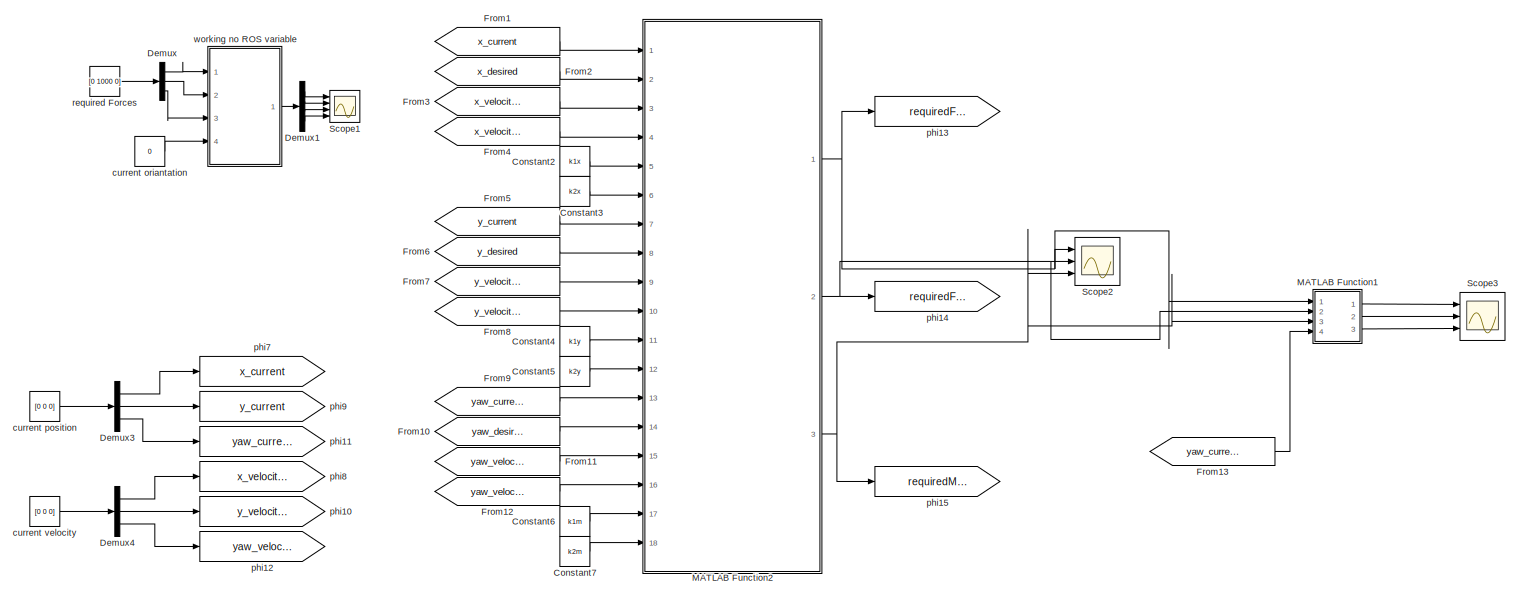
[diagram: root canvas - part 1/2, full width, middle band]
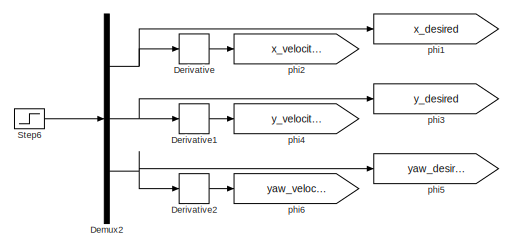
[diagram: root canvas - part 2/2, bottom left region]
MODEL slx_d18489592d00
KIND model
BLOCK [Constant] Constant2
  Value = k1x
BLOCK [Constant] Constant3
  Value = k2x
BLOCK [Constant] Constant4
  Value = k1y
BLOCK [Constant] Constant5
  Value = k2y
BLOCK [Constant] Constant6
  Value = k1m
BLOCK [Constant] Constant7
  Value = k2m
BLOCK [Demux] Demux
  DisplayOption = bar
  Outputs = 3
  Ports = [1, 3]
BLOCK [Demux] Demux1
  DisplayOption = bar
  Ports = [1, 4]
BLOCK [Demux] Demux2
  DisplayOption = bar
  Outputs = 3
  Ports = [1, 3]
BLOCK [Demux] Demux3
  DisplayOption = bar
  Outputs = 3
  Ports = [1, 3]
BLOCK [Demux] Demux4
  DisplayOption = bar
  Outputs = 3
  Ports = [1, 3]
BLOCK [Derivative] Derivative
BLOCK [Derivative] Derivative1
BLOCK [Derivative] Derivative2
BLOCK [From] From1
  GotoTag = x_current
BLOCK [From] From10
  GotoTag = yaw_desired
BLOCK [From] From11
  GotoTag = yaw_velocity_current
BLOCK [From] From12
  GotoTag = yaw_velocity_desired
BLOCK [From] From13
  GotoTag = yaw_current
BLOCK [From] From2
  GotoTag = x_desired
BLOCK [From] From3
  GotoTag = x_velocity_current
BLOCK [From] From4
  GotoTag = x_velocity_desired
BLOCK [From] From5
  GotoTag = y_current
BLOCK [From] From6
  GotoTag = y_desired
BLOCK [From] From7
  GotoTag = y_velocity_current
BLOCK [From] From8
  GotoTag = y_velocity_desired
BLOCK [From] From9
  GotoTag = yaw_current
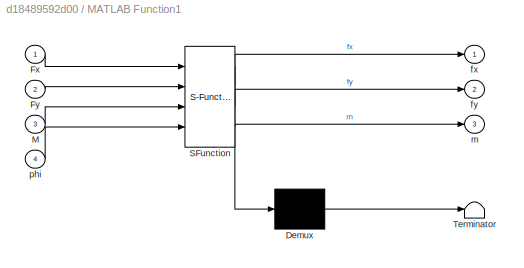
BLOCK [SubSystem] MATLAB Function1
  ErrorFcn = Stateflow.Translate.translate
  PermitHierarchicalResolution = ExplicitOnly
  Ports = [4, 3]
  RequestExecContextInheritance = off
  SFBlockType = MATLAB Function
  TreatAsAtomicUnit = on
BLOCK [Demux] MATLAB Function1/ Demux 
  Outputs = 1
  Ports = [1, 1]
BLOCK [S-Function] MATLAB Function1/ SFunction 
  EnableBusSupport = on
  FunctionName = sf_sfun
  PortCounts = [4 4]
  Ports = [4, 4]
  Tag = Stateflow S-Function OneToOne 2
BLOCK [Terminator] MATLAB Function1/ Terminator 
BLOCK [Inport] MATLAB Function1/Fx
  IconDisplay = Port number
BLOCK [Inport] MATLAB Function1/Fy
  IconDisplay = Port number
  Port = 2
BLOCK [Inport] MATLAB Function1/M
  IconDisplay = Port number
  Port = 3
BLOCK [Outport] MATLAB Function1/fx
  IconDisplay = Port number
BLOCK [Outport] MATLAB Function1/fy
  IconDisplay = Port number
  Port = 2
BLOCK [Outport] MATLAB Function1/m
  IconDisplay = Port number
  Port = 3
BLOCK [Inport] MATLAB Function1/phi
  IconDisplay = Port number
  Port = 4
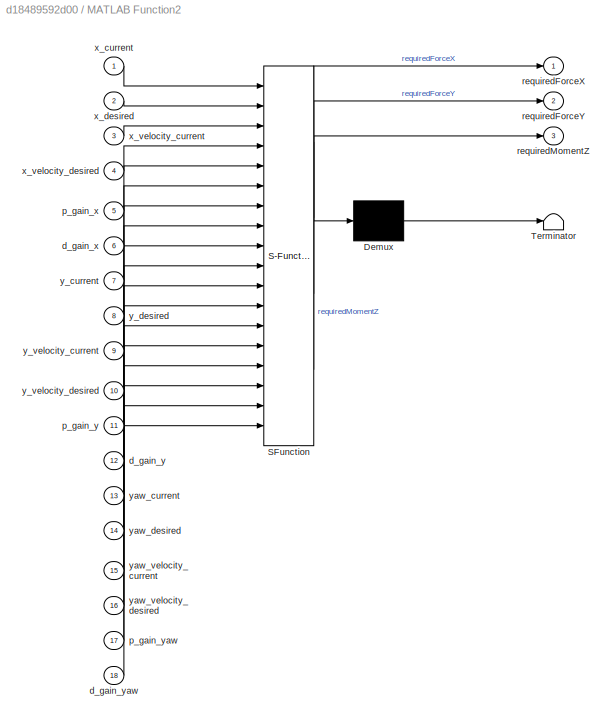
BLOCK [SubSystem] MATLAB Function2
  ErrorFcn = Stateflow.Translate.translate
  PermitHierarchicalResolution = ExplicitOnly
  Ports = [18, 3]
  RequestExecContextInheritance = off
  SFBlockType = MATLAB Function
  TreatAsAtomicUnit = on
BLOCK [Demux] MATLAB Function2/ Demux 
  Outputs = 1
  Ports = [1, 1]
BLOCK [S-Function] MATLAB Function2/ SFunction 
  EnableBusSupport = on
  FunctionName = sf_sfun
  PortCounts = [18 4]
  Ports = [18, 4]
  Tag = Stateflow S-Function OneToOne 1
BLOCK [Terminator] MATLAB Function2/ Terminator 
BLOCK [Inport] MATLAB Function2/d_gain_x
  IconDisplay = Port number
  Port = 6
BLOCK [Inport] MATLAB Function2/d_gain_y
  IconDisplay = Port number
  Port = 12
BLOCK [Inport] MATLAB Function2/d_gain_yaw
  IconDisplay = Port number
  Port = 18
BLOCK [Inport] MATLAB Function2/p_gain_x
  IconDisplay = Port number
  Port = 5
BLOCK [Inport] MATLAB Function2/p_gain_y
  IconDisplay = Port number
  Port = 11
BLOCK [Inport] MATLAB Function2/p_gain_yaw
  IconDisplay = Port number
  Port = 17
BLOCK [Outport] MATLAB Function2/requiredForceX
  IconDisplay = Port number
BLOCK [Outport] MATLAB Function2/requiredForceY
  IconDisplay = Port number
  Port = 2
BLOCK [Outport] MATLAB Function2/requiredMomentZ
  IconDisplay = Port number
  Port = 3
BLOCK [Inport] MATLAB Function2/x_current
  IconDisplay = Port number
BLOCK [Inport] MATLAB Function2/x_desired
  IconDisplay = Port number
  Port = 2
BLOCK [Inport] MATLAB Function2/x_velocity_current
  IconDisplay = Port number
  Port = 3
BLOCK [Inport] MATLAB Function2/x_velocity_desired
  IconDisplay = Port number
  Port = 4
BLOCK [Inport] MATLAB Function2/y_current
  IconDisplay = Port number
  Port = 7
BLOCK [Inport] MATLAB Function2/y_desired
  IconDisplay = Port number
  Port = 8
BLOCK [Inport] MATLAB Function2/y_velocity_current
  IconDisplay = Port number
  Port = 9
BLOCK [Inport] MATLAB Function2/y_velocity_desired
  IconDisplay = Port number
  Port = 10
BLOCK [Inport] MATLAB Function2/yaw_current
  IconDisplay = Port number
  Port = 13
BLOCK [Inport] MATLAB Function2/yaw_desired
  IconDisplay = Port number
  Port = 14
BLOCK [Inport] MATLAB Function2/yaw_velocity_current
  IconDisplay = Port number
  Port = 15
BLOCK [Inport] MATLAB Function2/yaw_velocity_desired
  IconDisplay = Port number
  Port = 16
BLOCK [Scope] Scope1
  DataFormat = StructureWithTime
  Floating = off
  NumInputPorts = 4
  Ports = [4]
  SampleTime = 0
  SaveName = ScopeData1
  ShowLegends = off
  YMax = -69.9983~-23.65~69.9983~39.25
  YMin = -69.9983~-23.65~69.9983~39.25
  ZoomMode = yonly
BLOCK [Scope] Scope2
  DataFormat = StructureWithTime
  Floating = off
  LimitDataPoints = off
  NumInputPorts = 3
  Ports = [3]
  SampleTime = 0
  ShowLegends = off
  YMax = 0~940~-155
  YMin = -3~905~-185
  ZoomMode = yonly
BLOCK [Scope] Scope3
  DataFormat = StructureWithTime
  Floating = off
  LimitDataPoints = off
  NumInputPorts = 3
  Ports = [3]
  SampleTime = 0
  SaveName = ScopeData2
  ShowLegends = off
  YMax = 0~940~-155
  YMin = -3~905~-185
  ZoomMode = yonly
BLOCK [Step] Step6
  After = [0;10;0]
  Before = [0;0;0]
  SampleTime = 0
BLOCK [Constant] current oriantation
  Value = 0
BLOCK [Constant] current position
  Value = [0 0 0]
BLOCK [Constant] current velocity
  Value = [0 0 0]
BLOCK [Goto] phi1
  GotoTag = x_desired
BLOCK [Goto] phi10
  GotoTag = y_velocity_current
BLOCK [Goto] phi11
  GotoTag = yaw_current
BLOCK [Goto] phi12
  GotoTag = yaw_velocity_current
BLOCK [Goto] phi13
  GotoTag = requiredForceX
BLOCK [Goto] phi14
  GotoTag = requiredForceY
BLOCK [Goto] phi15
  GotoTag = requiredMomentZ
BLOCK [Goto] phi2
  GotoTag = x_velocity_desired
BLOCK [Goto] phi3
  GotoTag = y_desired
BLOCK [Goto] phi4
  GotoTag = y_velocity_desired
BLOCK [Goto] phi5
  GotoTag = yaw_desired
BLOCK [Goto] phi6
  GotoTag = yaw_velocity_desired
BLOCK [Goto] phi7
  GotoTag = x_current
BLOCK [Goto] phi8
  GotoTag = x_velocity_current
BLOCK [Goto] phi9
  GotoTag = y_current
BLOCK [Constant] required Forces
  Value = [0 1000 0]
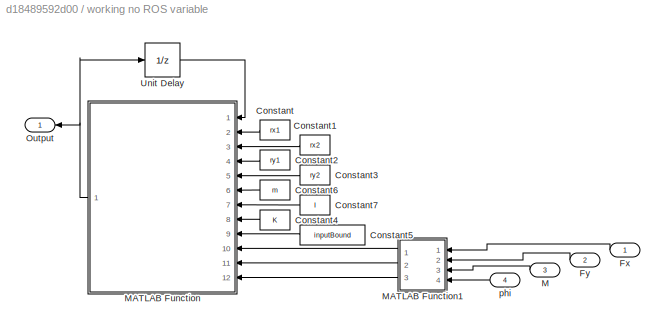
BLOCK [SubSystem] working no ROS variable
  Ports = [4, 1]
  RequestExecContextInheritance = off
BLOCK [Constant] working no ROS variable/Constant
  Value = rx1
BLOCK [Constant] working no ROS variable/Constant1
  Value = rx2
BLOCK [Constant] working no ROS variable/Constant2
  Value = ry1
BLOCK [Constant] working no ROS variable/Constant3
  Value = ry2
BLOCK [Constant] working no ROS variable/Constant4
  Value = K
BLOCK [Constant] working no ROS variable/Constant5
  Value = inputBound
BLOCK [Constant] working no ROS variable/Constant6
  Value = m
BLOCK [Constant] working no ROS variable/Constant7
  Value = I
BLOCK [Inport] working no ROS variable/Fx
  IconDisplay = Port number
BLOCK [Inport] working no ROS variable/Fy
  IconDisplay = Port number
  Port = 2
BLOCK [Inport] working no ROS variable/M
  IconDisplay = Port number
  Port = 3
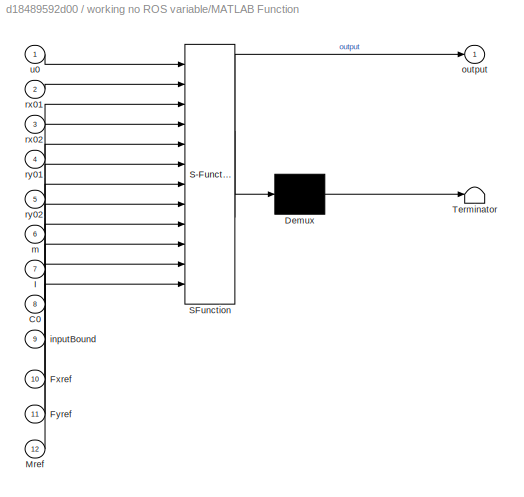
BLOCK [SubSystem] working no ROS variable/MATLAB Function
  ErrorFcn = Stateflow.Translate.translate
  PermitHierarchicalResolution = ExplicitOnly
  Ports = [12, 1]
  RequestExecContextInheritance = off
  SFBlockType = MATLAB Function
  TreatAsAtomicUnit = on
BLOCK [Demux] working no ROS variable/MATLAB Function/ Demux 
  Outputs = 1
  Ports = [1, 1]
BLOCK [S-Function] working no ROS variable/MATLAB Function/ SFunction 
  EnableBusSupport = on
  FunctionName = sf_sfun
  PortCounts = [12 2]
  Ports = [12, 2]
  Tag = Stateflow S-Function OneToOne 3
BLOCK [Terminator] working no ROS variable/MATLAB Function/ Terminator 
BLOCK [Inport] working no ROS variable/MATLAB Function/C0
  IconDisplay = Port number
  Port = 8
BLOCK [Inport] working no ROS variable/MATLAB Function/Fxref
  IconDisplay = Port number
  Port = 10
BLOCK [Inport] working no ROS variable/MATLAB Function/Fyref
  IconDisplay = Port number
  Port = 11
BLOCK [Inport] working no ROS variable/MATLAB Function/I
  IconDisplay = Port number
  Port = 7
BLOCK [Inport] working no ROS variable/MATLAB Function/Mref
  IconDisplay = Port number
  Port = 12
BLOCK [Inport] working no ROS variable/MATLAB Function/inputBound
  IconDisplay = Port number
  Port = 9
BLOCK [Inport] working no ROS variable/MATLAB Function/m
  IconDisplay = Port number
  Port = 6
BLOCK [Outport] working no ROS variable/MATLAB Function/output
  IconDisplay = Port number
BLOCK [Inport] working no ROS variable/MATLAB Function/rx01
  IconDisplay = Port number
  Port = 2
BLOCK [Inport] working no ROS variable/MATLAB Function/rx02
  IconDisplay = Port number
  Port = 3
BLOCK [Inport] working no ROS variable/MATLAB Function/ry01
  IconDisplay = Port number
  Port = 4
BLOCK [Inport] working no ROS variable/MATLAB Function/ry02
  IconDisplay = Port number
  Port = 5
BLOCK [Inport] working no ROS variable/MATLAB Function/u0
  IconDisplay = Port number
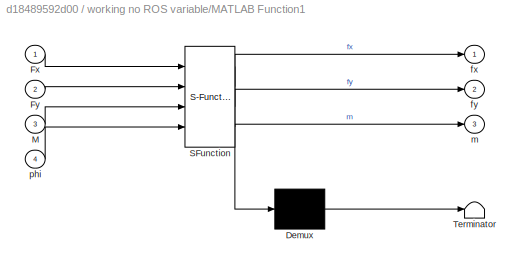
BLOCK [SubSystem] working no ROS variable/MATLAB Function1
  ErrorFcn = Stateflow.Translate.translate
  PermitHierarchicalResolution = ExplicitOnly
  Ports = [4, 3]
  RequestExecContextInheritance = off
  SFBlockType = MATLAB Function
  TreatAsAtomicUnit = on
BLOCK [Demux] working no ROS variable/MATLAB Function1/ Demux 
  Outputs = 1
  Ports = [1, 1]
BLOCK [S-Function] working no ROS variable/MATLAB Function1/ SFunction 
  EnableBusSupport = on
  FunctionName = sf_sfun
  PortCounts = [4 4]
  Ports = [4, 4]
  Tag = Stateflow S-Function OneToOne 4
BLOCK [Terminator] working no ROS variable/MATLAB Function1/ Terminator 
BLOCK [Inport] working no ROS variable/MATLAB Function1/Fx
  IconDisplay = Port number
BLOCK [Inport] working no ROS variable/MATLAB Function1/Fy
  IconDisplay = Port number
  Port = 2
BLOCK [Inport] working no ROS variable/MATLAB Function1/M
  IconDisplay = Port number
  Port = 3
BLOCK [Outport] working no ROS variable/MATLAB Function1/fx
  IconDisplay = Port number
BLOCK [Outport] working no ROS variable/MATLAB Function1/fy
  IconDisplay = Port number
  Port = 2
BLOCK [Outport] working no ROS variable/MATLAB Function1/m
  IconDisplay = Port number
  Port = 3
BLOCK [Inport] working no ROS variable/MATLAB Function1/phi
  IconDisplay = Port number
  Port = 4
BLOCK [Outport] working no ROS variable/Output
  IconDisplay = Port number
BLOCK [UnitDelay] working no ROS variable/Unit Delay
  InitialCondition = [0;0;0;0]
  InputProcessing = Elements as channels (sample based)
  SampleTime = -1
BLOCK [Inport] working no ROS variable/phi
  IconDisplay = Port number
  Port = 4
LINE Constant2:1 -> MATLAB Function2:5
LINE Constant3:1 -> MATLAB Function2:6
LINE Constant4:1 -> MATLAB Function2:11
LINE Constant5:1 -> MATLAB Function2:12
LINE Constant6:1 -> MATLAB Function2:17
LINE Constant7:1 -> MATLAB Function2:18
LINE Demux1:1 -> Scope1:1
LINE Demux1:2 -> Scope1:2
LINE Demux1:3 -> Scope1:3
LINE Demux1:4 -> Scope1:4
NET Demux2:1 -> Derivative:1, phi1:1
NET Demux2:2 -> Derivative1:1, phi3:1
NET Demux2:3 -> Derivative2:1, phi5:1
LINE Demux3:1 -> phi7:1
LINE Demux3:2 -> phi9:1
LINE Demux3:3 -> phi11:1
LINE Demux4:1 -> phi8:1
LINE Demux4:2 -> phi10:1
LINE Demux4:3 -> phi12:1
LINE Demux:1 -> working no ROS variable:1
LINE Demux:2 -> working no ROS variable:2
LINE Demux:3 -> working no ROS variable:3
LINE Derivative1:1 -> phi4:1
LINE Derivative2:1 -> phi6:1
LINE Derivative:1 -> phi2:1
LINE From10:1 -> MATLAB Function2:14
LINE From11:1 -> MATLAB Function2:15
LINE From12:1 -> MATLAB Function2:16
LINE From13:1 -> MATLAB Function1:4
LINE From1:1 -> MATLAB Function2:1
LINE From2:1 -> MATLAB Function2:2
LINE From3:1 -> MATLAB Function2:3
LINE From4:1 -> MATLAB Function2:4
LINE From5:1 -> MATLAB Function2:7
LINE From6:1 -> MATLAB Function2:8
LINE From7:1 -> MATLAB Function2:9
LINE From8:1 -> MATLAB Function2:10
LINE From9:1 -> MATLAB Function2:13
LINE MATLAB Function1:1 -> Scope3:1
LINE MATLAB Function1:2 -> Scope3:2
LINE MATLAB Function1:3 -> Scope3:3
NET MATLAB Function2:1 -> MATLAB Function1:1, Scope2:1, phi13:1
NET MATLAB Function2:2 -> MATLAB Function1:2, Scope2:2, phi14:1
NET MATLAB Function2:3 -> MATLAB Function1:3, Scope2:3, phi15:1
LINE Step6:1 -> Demux2:1
LINE current oriantation:1 -> working no ROS variable:4
LINE current position:1 -> Demux3:1
LINE current velocity:1 -> Demux4:1
LINE required Forces:1 -> Demux:1
LINE working no ROS variable/Constant1:1 -> working no ROS variable/MATLAB Function:3
LINE working no ROS variable/Constant2:1 -> working no ROS variable/MATLAB Function:4
LINE working no ROS variable/Constant3:1 -> working no ROS variable/MATLAB Function:5
LINE working no ROS variable/Constant4:1 -> working no ROS variable/MATLAB Function:8
LINE working no ROS variable/Constant5:1 -> working no ROS variable/MATLAB Function:9
LINE working no ROS variable/Constant6:1 -> working no ROS variable/MATLAB Function:6
LINE working no ROS variable/Constant7:1 -> working no ROS variable/MATLAB Function:7
LINE working no ROS variable/Constant:1 -> working no ROS variable/MATLAB Function:2
LINE working no ROS variable/Fx:1 -> working no ROS variable/MATLAB Function1:1
LINE working no ROS variable/Fy:1 -> working no ROS variable/MATLAB Function1:2
LINE working no ROS variable/M:1 -> working no ROS variable/MATLAB Function1:3
LINE working no ROS variable/MATLAB Function1:1 -> working no ROS variable/MATLAB Function:10
LINE working no ROS variable/MATLAB Function1:2 -> working no ROS variable/MATLAB Function:11
LINE working no ROS variable/MATLAB Function1:3 -> working no ROS variable/MATLAB Function:12
NET working no ROS variable/MATLAB Function:1 -> working no ROS variable/Output:1, working no ROS variable/Unit Delay:1
LINE working no ROS variable/Unit Delay:1 -> working no ROS variable/MATLAB Function:1
LINE working no ROS variable/phi:1 -> working no ROS variable/MATLAB Function1:4
LINE working no ROS variable:1 -> Demux1:1
note: NET lines group one-source signal fan-out (src -> all destinations, sorted); 1:1 wires keep LINE
